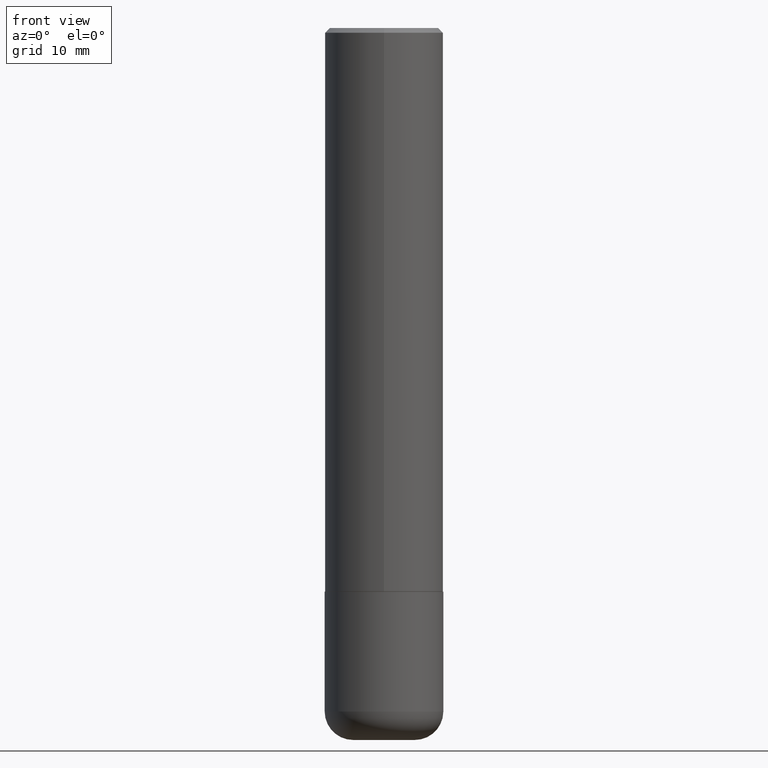
[diagram: clean part render]
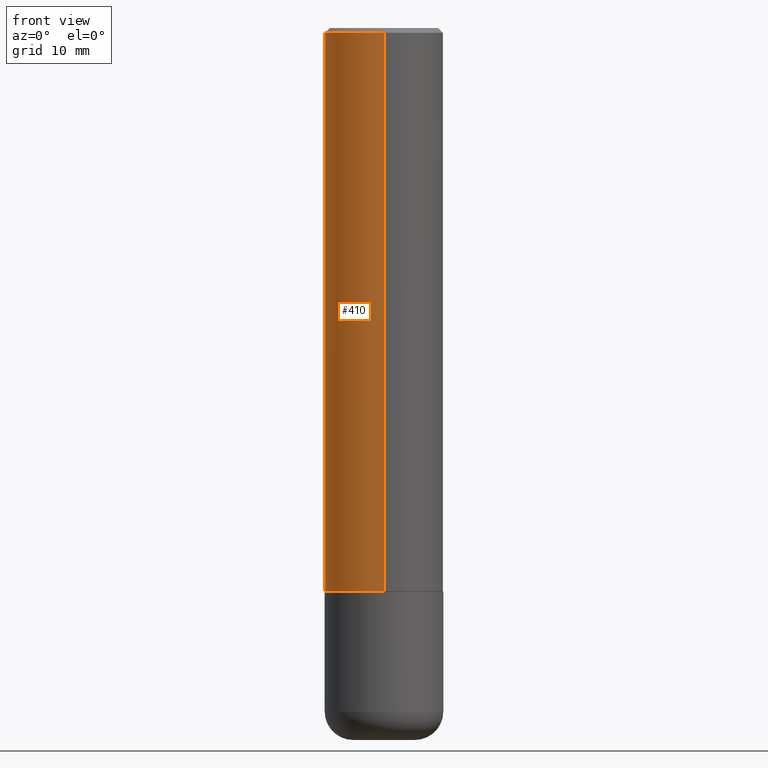
[diagram: same view with one face highlighted and labeled with its STEP entity id]
A machine part, front view. The second image highlights one B-rep face of the part: STEP entity #410.
In plain terms, the highlighted cylindrical surface (partial cylindrical patch) has radius 6.35 mm, axis along (-0, 0, 1).
Its self-contained STEP definition (entity closure, byte-faithful):
#40 = FACE_OUTER_BOUND ( 'NONE', #353, .T. ) ;
#51 = ORIENTED_EDGE ( 'NONE', *, *, #165, .T. ) ;
#54 = VERTEX_POINT ( 'NONE', #299 ) ;
#63 = AXIS2_PLACEMENT_3D ( 'NONE', #228, #198, #326 ) ;
#65 = DIRECTION ( 'NONE',  ( -2.445729767687599458E-29, 3.491107627118612649E-15, 1.000000000000000000 ) ) ;
#91 = EDGE_CURVE ( 'NONE', #163, #305, #395, .T. ) ;
#101 = DIRECTION ( 'NONE',  ( -6.982962677686265922E-15, -1.000000000000000000, 3.278217592397112312E-15 ) ) ;
#108 = CARTESIAN_POINT ( 'NONE',  ( 1.776356839400251254E-15, 0.2500000000000001110, -8.727769067796535567E-16 ) ) ;
#146 = CYLINDRICAL_SURFACE ( 'NONE', #182, 0.2500000000000001110 ) ;
#148 = EDGE_CURVE ( 'NONE', #305, #54, #154, .T. ) ;
#154 = CIRCLE ( 'NONE', #63, 0.2500000000000000000 ) ;
#163 = VERTEX_POINT ( 'NONE', #172 ) ;
#165 = EDGE_CURVE ( 'NONE', #163, #244, #279, .T. ) ;
#172 = CARTESIAN_POINT ( 'NONE',  ( 1.776356839400280836E-15, 0.2499999999999919786, -2.374000000000000998 ) ) ;
#179 = DIRECTION ( 'NONE',  ( -6.982962677686266711E-15, -1.000000000000000000, 3.491107627118612649E-15 ) ) ;
#182 = AXIS2_PLACEMENT_3D ( 'NONE', #372, #327, #179 ) ;
#198 = DIRECTION ( 'NONE',  ( -2.445729767687599458E-29, 3.491107627118612255E-15, 1.000000000000000000 ) ) ;
#208 = VECTOR ( 'NONE', #65, 39.37007874015748143 ) ;
#222 = LINE ( 'NONE', #354, #208 ) ;
#228 = CARTESIAN_POINT ( 'NONE',  ( 4.891459535375212615E-31, -6.982215254237243146E-17, -0.02000000000000005593 ) ) ;
#244 = VERTEX_POINT ( 'NONE', #361 ) ;
#250 = CARTESIAN_POINT ( 'NONE',  ( 1.745740669421566875E-15, 0.2499999999999999167, -0.02000000000000092676 ) ) ;
#260 = CARTESIAN_POINT ( 'NONE',  ( 5.806162468490361962E-29, -8.287889506779587323E-15, -2.374000000000000110 ) ) ;
#279 = CIRCLE ( 'NONE', #300, 0.2500000000000002776 ) ;
#293 = DIRECTION ( 'NONE',  ( -2.445729767687599458E-29, 3.491107627118612649E-15, 1.000000000000000000 ) ) ;
#299 = CARTESIAN_POINT ( 'NONE',  ( -1.715124499442882299E-15, -0.2500000000000000555, -0.01999999999999918510 ) ) ;
#300 = AXIS2_PLACEMENT_3D ( 'NONE', #260, #393, #101 ) ;
#305 = VERTEX_POINT ( 'NONE', #250 ) ;
#320 = ORIENTED_EDGE ( 'NONE', *, *, #148, .F. ) ;
#326 = DIRECTION ( 'NONE',  ( -6.982962677686265922E-15, -1.000000000000000000, 3.483106191921935554E-15 ) ) ;
#327 = DIRECTION ( 'NONE',  ( -2.445729767687599458E-29, 3.491107627118612255E-15, 1.000000000000000000 ) ) ;
#340 = ORIENTED_EDGE ( 'NONE', *, *, #91, .F. ) ;
#353 = EDGE_LOOP ( 'NONE', ( #340, #51, #418, #320 ) ) ;
#354 = CARTESIAN_POINT ( 'NONE',  ( -1.745740669421567467E-15, -0.2500000000000001110, 8.727769067796535567E-16 ) ) ;
#361 = CARTESIAN_POINT ( 'NONE',  ( -1.745740669421510471E-15, -0.2500000000000085487, -2.373999999999999222 ) ) ;
#372 = CARTESIAN_POINT ( 'NONE',  ( 0.000000000000000000, 0.000000000000000000, 0.000000000000000000 ) ) ;
#376 = EDGE_CURVE ( 'NONE', #244, #54, #222, .T. ) ;
#380 = VECTOR ( 'NONE', #293, 39.37007874015748143 ) ;
#393 = DIRECTION ( 'NONE',  ( -2.445729767687599458E-29, 3.491107627118612255E-15, 1.000000000000000000 ) ) ;
#395 = LINE ( 'NONE', #108, #380 ) ;
#410 = ADVANCED_FACE ( 'NONE', ( #40 ), #146, .T. ) ;
#418 = ORIENTED_EDGE ( 'NONE', *, *, #376, .T. ) ;